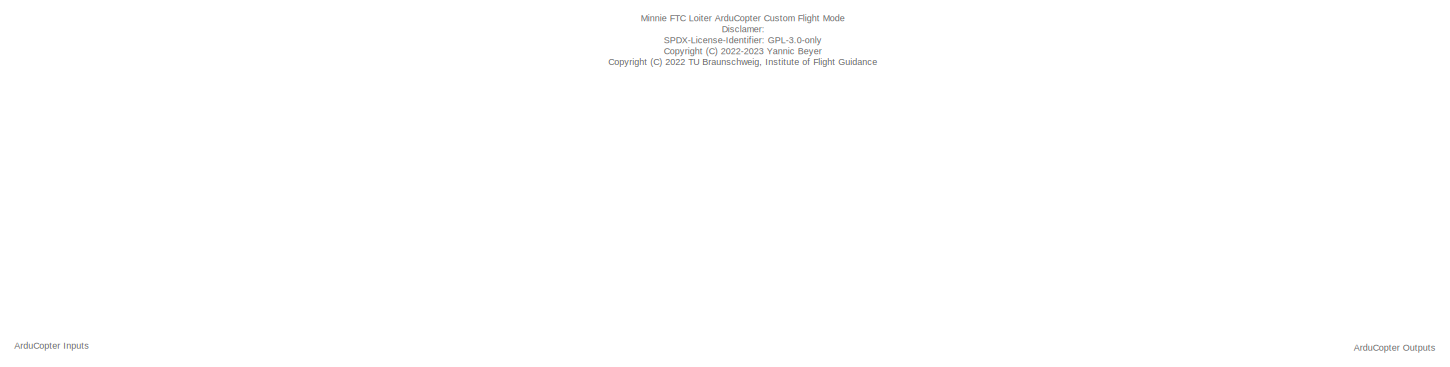
[diagram: root canvas - part 1/7, full width, top band]
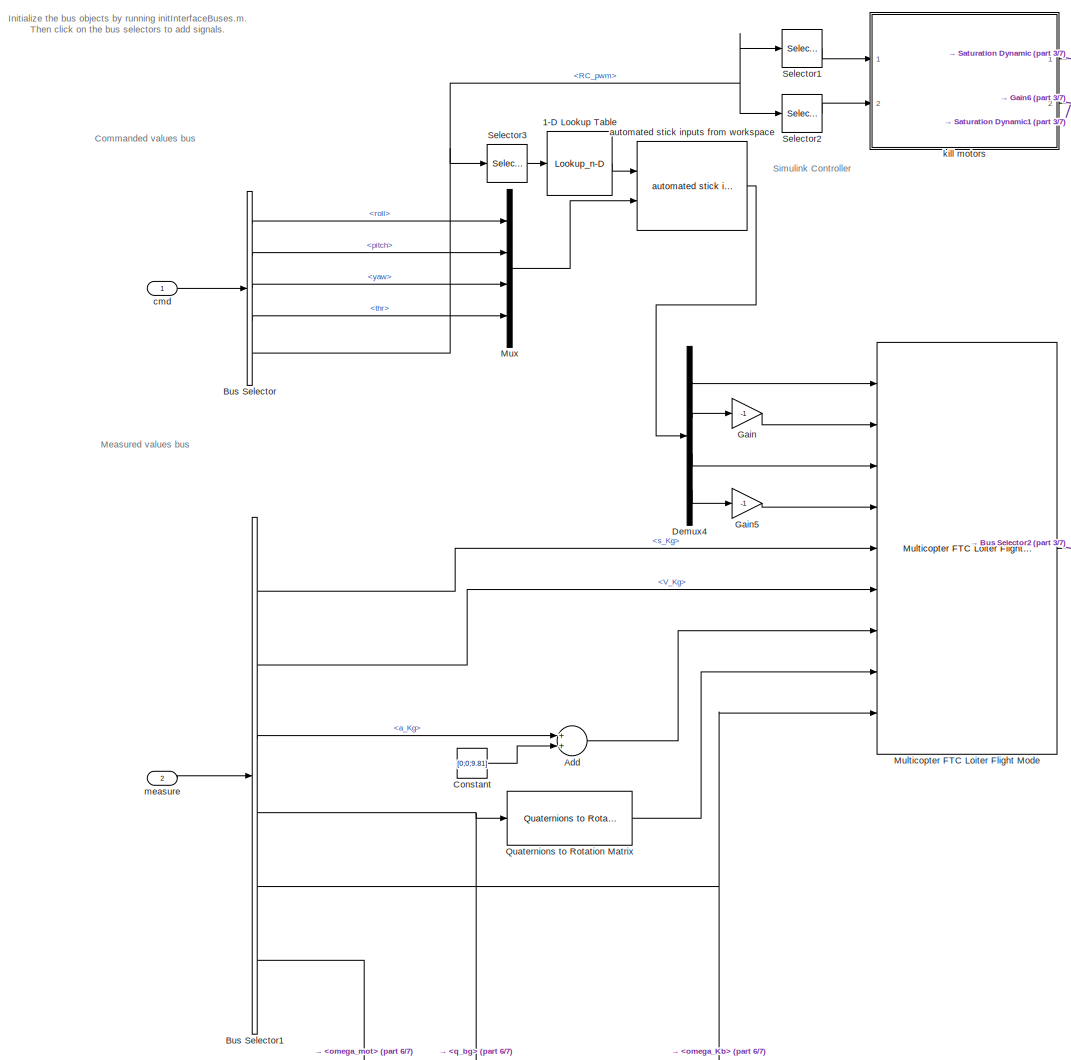
[diagram: root canvas - part 2/7, top left region]
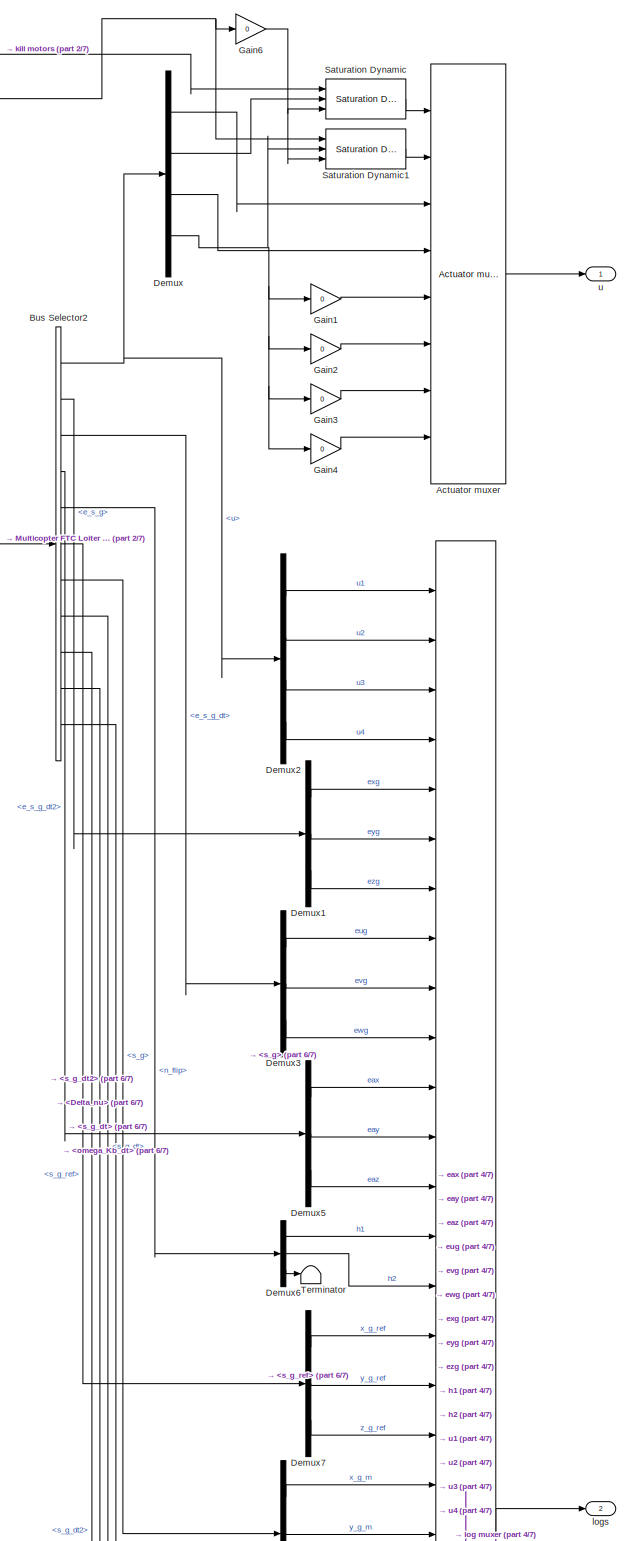
[diagram: root canvas - part 3/7, middle right region]
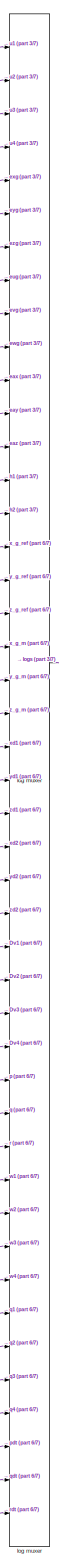
[diagram: root canvas - part 4/7, middle right region]
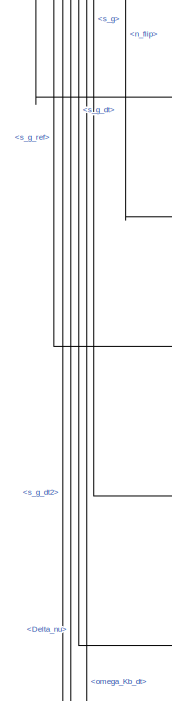
[diagram: root canvas - part 5/7, middle right region]
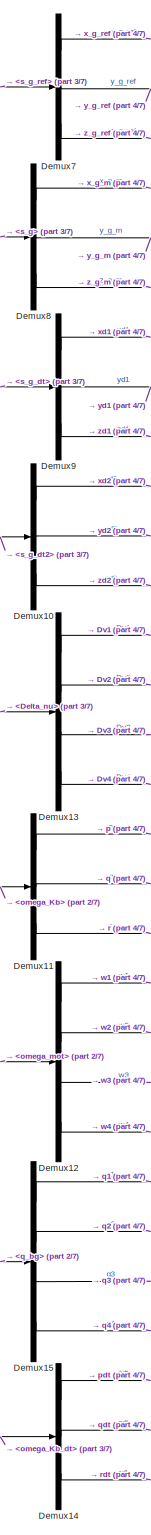
[diagram: root canvas - part 6/7, bottom right region]
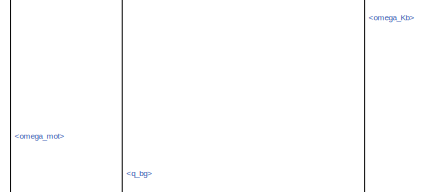
[diagram: root canvas - part 7/7, central region]
MODEL slx_b1be652d19ad
KIND model
CONFIG AbsTol = auto
CONFIG EnableMultiTasking = on
CONFIG FixedStep = 0.01
CONFIG MaxStep = auto
CONFIG MinStep = auto
CONFIG RelTol = 1e-4
CONFIG SampleTimeConstraint = Unconstrained
CONFIG Solver = FixedStepAuto
CONFIG SolverName = FixedStepAuto
CONFIG StartTime = 0.0
CONFIG StopTime = 1000
BLOCK [Lookup_n-D] 1-D Lookup Table
  BreakpointsForDimension1 = [1000;2000]
  InternalRulePriority = Speed
  NumberOfTableDimensions = 1
  Ports = [1, 1]
  RndMeth = Simplest
  Table = [0;1]
BLOCK [Reference] Actuator muxer  REF=ardupilot_custom_controller_lib/Actuator muxer  (lib defined in slx_bbc4fb9a1307)
  Ports = [8, 1]
  SourceBlock = ardupilot_custom_controller_lib/Actuator muxer
  SourceProductName = LADAC
BLOCK [Sum] Add
  InputSameDT = off
  OutDataTypeStr = Inherit: Inherit via internal rule
  Ports = [2, 1]
  SaturateOnIntegerOverflow = off
BLOCK [BusSelector] Bus Selector
  OutputAsBus = off
  OutputSignals = roll,pitch,yaw,thr,RC_pwm
  Ports = [1, 5]
BLOCK [BusSelector] Bus Selector1
  OutputAsBus = off
  OutputSignals = s_Kg,V_Kg,a_Kg,q_bg,omega_Kb,omega_mot
  Ports = [1, 6]
BLOCK [BusSelector] Bus Selector2
  OutputAsBus = off
  OutputSignals = inner_loop_indi.u,pos_cntrl.error.e_s_g,pos_cntrl.error.e_s_g_dt,pos_cntrl.error.e_s_g_dt2,atti_cntrl.reference.reduced_attitude.n_flip,pos_cntrl.reference.s_g_ref,pos_cntrl.measure.s_g,pos_cntrl.measure.s_g_dt,pos_cntrl.measure.s_g_dt2,inner_loop_indi.Delta_nu,atti_cntrl.measure.omega_Kb_dt
  Ports = [1, 11]
BLOCK [Constant] Constant
  Value = [0;0;9.81]
BLOCK [Demux] Demux
  DisplayOption = bar
  Ports = [1, 4]
BLOCK [Demux] Demux1
  DisplayOption = bar
  Outputs = 3
  Ports = [1, 3]
BLOCK [Demux] Demux10
  DisplayOption = bar
  Outputs = 3
  Ports = [1, 3]
BLOCK [Demux] Demux11
  DisplayOption = bar
  Outputs = 3
  Ports = [1, 3]
BLOCK [Demux] Demux12
  DisplayOption = bar
  Ports = [1, 4]
BLOCK [Demux] Demux13
  DisplayOption = bar
  Ports = [1, 4]
BLOCK [Demux] Demux14
  DisplayOption = bar
  Outputs = 3
  Ports = [1, 3]
BLOCK [Demux] Demux15
  DisplayOption = bar
  Ports = [1, 4]
BLOCK [Demux] Demux2
  DisplayOption = bar
  Ports = [1, 4]
BLOCK [Demux] Demux3
  DisplayOption = bar
  Outputs = 3
  Ports = [1, 3]
BLOCK [Demux] Demux4
  DisplayOption = bar
  Ports = [1, 4]
BLOCK [Demux] Demux5
  DisplayOption = bar
  Outputs = 3
  Ports = [1, 3]
BLOCK [Demux] Demux6
  DisplayOption = bar
  Outputs = 3
  Ports = [1, 3]
BLOCK [Demux] Demux7
  DisplayOption = bar
  Outputs = 3
  Ports = [1, 3]
BLOCK [Demux] Demux8
  DisplayOption = bar
  Outputs = 3
  Ports = [1, 3]
BLOCK [Demux] Demux9
  DisplayOption = bar
  Outputs = 3
  Ports = [1, 3]
BLOCK [Gain] Gain
  Gain = -1
  OutDataTypeStr = Inherit: Inherit via internal rule
  ParamDataTypeStr = Inherit: Inherit via internal rule
  SaturateOnIntegerOverflow = off
BLOCK [Gain] Gain1
  Gain = 0
  OutDataTypeStr = Inherit: Inherit via internal rule
  ParamDataTypeStr = Inherit: Inherit via internal rule
  SaturateOnIntegerOverflow = off
BLOCK [Gain] Gain2
  Gain = 0
  OutDataTypeStr = Inherit: Inherit via internal rule
  ParamDataTypeStr = Inherit: Inherit via internal rule
  SaturateOnIntegerOverflow = off
BLOCK [Gain] Gain3
  Gain = 0
  OutDataTypeStr = Inherit: Inherit via internal rule
  ParamDataTypeStr = Inherit: Inherit via internal rule
  SaturateOnIntegerOverflow = off
BLOCK [Gain] Gain4
  Gain = 0
  OutDataTypeStr = Inherit: Inherit via internal rule
  ParamDataTypeStr = Inherit: Inherit via internal rule
  SaturateOnIntegerOverflow = off
BLOCK [Gain] Gain5
  Gain = -1
  OutDataTypeStr = Inherit: Inherit via internal rule
  ParamDataTypeStr = Inherit: Inherit via internal rule
  SaturateOnIntegerOverflow = off
BLOCK [Gain] Gain6
  Gain = 0
  OutDataTypeStr = Inherit: Inherit via internal rule
  ParamDataTypeStr = Inherit: Inherit via internal rule
  SaturateOnIntegerOverflow = off
BLOCK [Reference] Multicopter FTC Loiter Flight Mode  REF=copterFtc_lib/Multicopter FTC Loiter Flight Mode
  Ports = [9, 1]
  SourceBlock = copterFtc_lib/Multicopter FTC Loiter Flight Mode
  SourceProductName = Copter FTC
BLOCK [Mux] Mux
  DisplayOption = bar
  Ports = [4, 1]
BLOCK [Reference] Quaternions to Rotation Matrix  REF=axes_transformation_lib/Quaternions to Rotation Matrix  (lib defined in slx_69e2413c78c0)
  Ports = [1, 1]
  SourceBlock = axes_transformation_lib/Quaternions to Rotation Matrix
  SourceProductName = LADAC
  SourceType = SubSystem
BLOCK [Reference] Saturation Dynamic  REF=simulink/Discontinuities/Saturation
Dynamic
  Ports = [3, 1]
  SourceBlock = simulink/Discontinuities/Saturation\nDynamic
  SourceProductBaseCode = SL
  SourceProductName = Simulink
  SourceType = Saturation Dynamic
BLOCK [Reference] Saturation Dynamic1  REF=simulink/Discontinuities/Saturation
Dynamic
  Ports = [3, 1]
  SourceBlock = simulink/Discontinuities/Saturation\nDynamic
  SourceProductBaseCode = SL
  SourceProductName = Simulink
  SourceType = Saturation Dynamic
BLOCK [Selector] Selector1
  IndexOptions = Index vector (dialog)
  Indices = 7
  InputPortWidth = 16
  OutputSizes = 1
  Ports = [1, 1]
BLOCK [Selector] Selector2
  IndexOptions = Index vector (dialog)
  Indices = 8
  InputPortWidth = 16
  OutputSizes = 1
  Ports = [1, 1]
BLOCK [Selector] Selector3
  IndexOptions = Index vector (dialog)
  Indices = 9
  InputPortWidth = 16
  OutputSizes = 1
  Ports = [1, 1]
BLOCK [Terminator] Terminator
BLOCK [Reference] automated stick inputs from workspace  REF=copterFtc_lib/automated stick inputs from workspace
  Ports = [2, 1]
  SourceBlock = copterFtc_lib/automated stick inputs from workspace
  SourceProductName = Copter FTC
BLOCK [Inport] cmd
  IconDisplay = Port number
  OutDataTypeStr = Bus: cmdBus
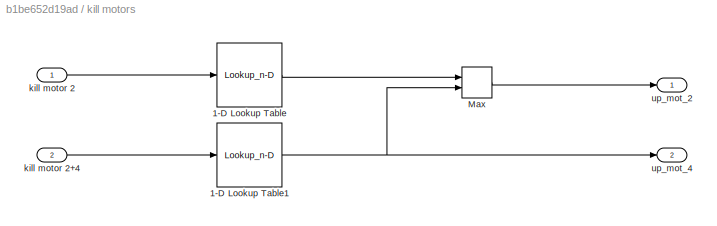
BLOCK [SubSystem] kill motors
  Ports = [2, 2]
  RequestExecContextInheritance = off
BLOCK [Lookup_n-D] kill motors/1-D Lookup Table
  BreakpointsForDimension1 = [1000;2000]
  InternalRulePriority = Speed
  NumberOfTableDimensions = 1
  Ports = [1, 1]
  RndMeth = Simplest
  Table = [1;0]
BLOCK [Lookup_n-D] kill motors/1-D Lookup Table1
  BreakpointsForDimension1 = [1000;2000]
  InternalRulePriority = Speed
  NumberOfTableDimensions = 1
  Ports = [1, 1]
  RndMeth = Simplest
  Table = [1;0]
BLOCK [MinMax] kill motors/Max
  InputSameDT = off
  Inputs = 2
  Ports = [2, 1]
  SaturateOnIntegerOverflow = off
BLOCK [Inport] kill motors/kill motor 2
  IconDisplay = Port number
BLOCK [Inport] kill motors/kill motor 2+4
  IconDisplay = Port number
  Port = 2
BLOCK [Outport] kill motors/up_mot_2
  IconDisplay = Port number
BLOCK [Outport] kill motors/up_mot_4
  IconDisplay = Port number
  Port = 2
BLOCK [Reference] log muxer  REF=ardupilot_custom_controller_lib/log muxer  (lib defined in slx_bbc4fb9a1307)
  Ports = [45, 1]
  SourceBlock = ardupilot_custom_controller_lib/log muxer
  SourceProductName = LADAC
BLOCK [Outport] logs
  IconDisplay = Port number
  Port = 2
BLOCK [Inport] measure
  IconDisplay = Port number
  OutDataTypeStr = Bus: measureBus
  Port = 2
BLOCK [Outport] u
  IconDisplay = Port number
ANNOTATION (root): ArduCopter Inputs
ANNOTATION (root): ArduCopter Outputs
ANNOTATION (root): Simulink Controller
ANNOTATION (root): Minnie FTC Loiter ArduCopter Custom Flight Mode Disclamer: SPDX-License-Identifier: GPL-3.0-only <copyright redacted>
ANNOTATION (root): Commanded values bus
ANNOTATION (root): Measured values bus
ANNOTATION (root): Initialize the bus objects by running initInterfaceBuses.m. Then click on the bus selectors to add signals.
LINE 1-D Lookup Table:1 -> automated stick inputs from workspace:1
LINE Actuator muxer:1 -> u:1
LINE Add:1 -> Multicopter FTC Loiter Flight Mode:7
LINE Bus Selector1:1 -> Multicopter FTC Loiter Flight Mode:5
LINE Bus Selector1:2 -> Multicopter FTC Loiter Flight Mode:6
LINE Bus Selector1:3 -> Add:1
NET Bus Selector1:4 -> Demux15:1, Quaternions to Rotation Matrix:1
NET Bus Selector1:5 -> Demux11:1, Multicopter FTC Loiter Flight Mode:9
LINE Bus Selector1:6 -> Demux12:1
NET Bus Selector2:1 -> Demux2:1, Demux:1
LINE Bus Selector2:10 -> Demux13:1
LINE Bus Selector2:11 -> Demux14:1
LINE Bus Selector2:2 -> Demux1:1
LINE Bus Selector2:3 -> Demux3:1
LINE Bus Selector2:4 -> Demux5:1
LINE Bus Selector2:5 -> Demux6:1
LINE Bus Selector2:6 -> Demux7:1
LINE Bus Selector2:7 -> Demux8:1
LINE Bus Selector2:8 -> Demux9:1
LINE Bus Selector2:9 -> Demux10:1
LINE Bus Selector:1 -> Mux:1
LINE Bus Selector:2 -> Mux:2
LINE Bus Selector:3 -> Mux:3
LINE Bus Selector:4 -> Mux:4
NET Bus Selector:5 -> Selector1:1, Selector2:1, Selector3:1
LINE Constant:1 -> Add:2
LINE Demux10:1 -> log muxer:25
LINE Demux10:2 -> log muxer:26
LINE Demux10:3 -> log muxer:27
LINE Demux11:1 -> log muxer:32
LINE Demux11:2 -> log muxer:33
LINE Demux11:3 -> log muxer:34
LINE Demux12:1 -> log muxer:35
LINE Demux12:2 -> log muxer:36
LINE Demux12:3 -> log muxer:37
LINE Demux12:4 -> log muxer:38
LINE Demux13:1 -> log muxer:28
LINE Demux13:2 -> log muxer:29
LINE Demux13:3 -> log muxer:30
LINE Demux13:4 -> log muxer:31
LINE Demux14:1 -> log muxer:43
LINE Demux14:2 -> log muxer:44
LINE Demux14:3 -> log muxer:45
LINE Demux15:1 -> log muxer:39
LINE Demux15:2 -> log muxer:40
LINE Demux15:3 -> log muxer:41
LINE Demux15:4 -> log muxer:42
LINE Demux1:1 -> log muxer:5
LINE Demux1:2 -> log muxer:6
LINE Demux1:3 -> log muxer:7
LINE Demux2:1 -> log muxer:1
LINE Demux2:2 -> log muxer:2
LINE Demux2:3 -> log muxer:3
LINE Demux2:4 -> log muxer:4
LINE Demux3:1 -> log muxer:8
LINE Demux3:2 -> log muxer:9
LINE Demux3:3 -> log muxer:10
LINE Demux4:1 -> Multicopter FTC Loiter Flight Mode:1
LINE Demux4:2 -> Gain:1
LINE Demux4:3 -> Multicopter FTC Loiter Flight Mode:3
LINE Demux4:4 -> Gain5:1
LINE Demux5:1 -> log muxer:11
LINE Demux5:2 -> log muxer:12
LINE Demux5:3 -> log muxer:13
LINE Demux6:1 -> log muxer:14
LINE Demux6:2 -> log muxer:15
LINE Demux6:3 -> Terminator:1
LINE Demux7:1 -> log muxer:16
LINE Demux7:2 -> log muxer:17
LINE Demux7:3 -> log muxer:18
LINE Demux8:1 -> log muxer:19
LINE Demux8:2 -> log muxer:20
LINE Demux8:3 -> log muxer:21
LINE Demux9:1 -> log muxer:22
LINE Demux9:2 -> log muxer:23
LINE Demux9:3 -> log muxer:24
LINE Demux:1 -> Actuator muxer:3
LINE Demux:2 -> Saturation Dynamic:2
LINE Demux:3 -> Actuator muxer:4
NET Demux:4 -> Gain1:1, Gain2:1, Gain3:1, Gain4:1, Saturation Dynamic1:2
LINE Gain1:1 -> Actuator muxer:5
LINE Gain2:1 -> Actuator muxer:6
LINE Gain3:1 -> Actuator muxer:7
LINE Gain4:1 -> Actuator muxer:8
LINE Gain5:1 -> Multicopter FTC Loiter Flight Mode:4
NET Gain6:1 -> Saturation Dynamic1:3, Saturation Dynamic:3
LINE Gain:1 -> Multicopter FTC Loiter Flight Mode:2
LINE Multicopter FTC Loiter Flight Mode:1 -> Bus Selector2:1
LINE Mux:1 -> automated stick inputs from workspace:2
LINE Quaternions to Rotation Matrix:1 -> Multicopter FTC Loiter Flight Mode:8
LINE Saturation Dynamic1:1 -> Actuator muxer:2
LINE Saturation Dynamic:1 -> Actuator muxer:1
LINE Selector1:1 -> kill motors:1
LINE Selector2:1 -> kill motors:2
LINE Selector3:1 -> 1-D Lookup Table:1
LINE automated stick inputs from workspace:1 -> Demux4:1
LINE cmd:1 -> Bus Selector:1
NET kill motors/1-D Lookup Table1:1 -> kill motors/Max:2, kill motors/up_mot_4:1
LINE kill motors/1-D Lookup Table:1 -> kill motors/Max:1
LINE kill motors/Max:1 -> kill motors/up_mot_2:1
LINE kill motors/kill motor 2+4:1 -> kill motors/1-D Lookup Table1:1
LINE kill motors/kill motor 2:1 -> kill motors/1-D Lookup Table:1
LINE kill motors:1 -> Saturation Dynamic:1
NET kill motors:2 -> Gain6:1, Saturation Dynamic1:1
LINE log muxer:1 -> logs:1
LINE measure:1 -> Bus Selector1:1
note: NET lines group one-source signal fan-out (src -> all destinations, sorted); 1:1 wires keep LINE
